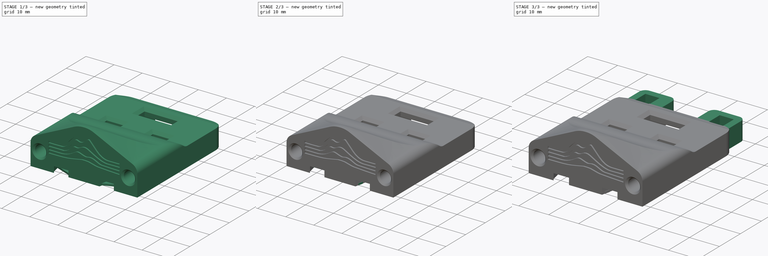
[diagram: build sequence overview — one tinted view per stage of 3, left to right]
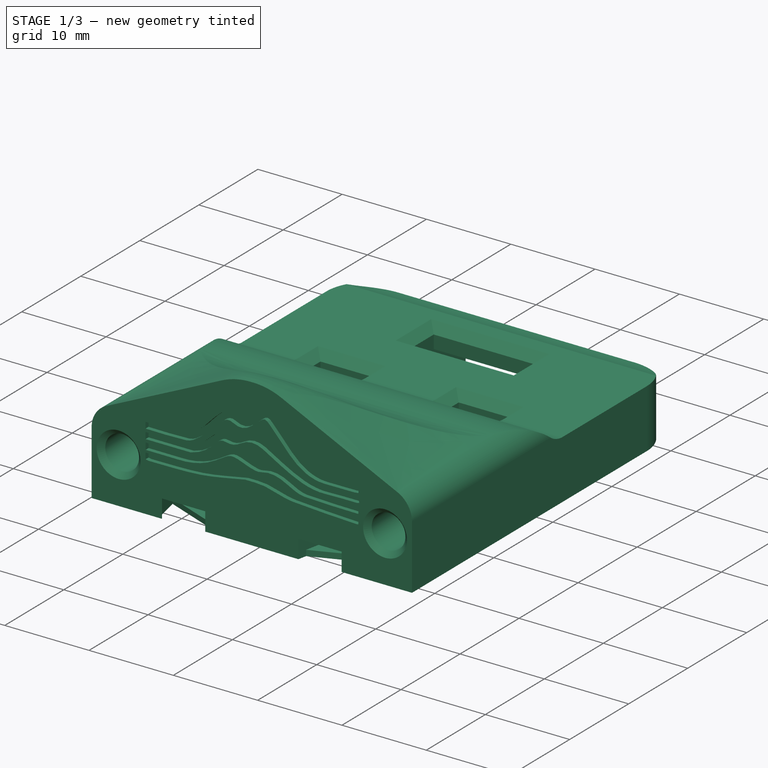
[diagram: stage 1 of 3 — iso view after this stage's code; geometry added in this stage tinted green]
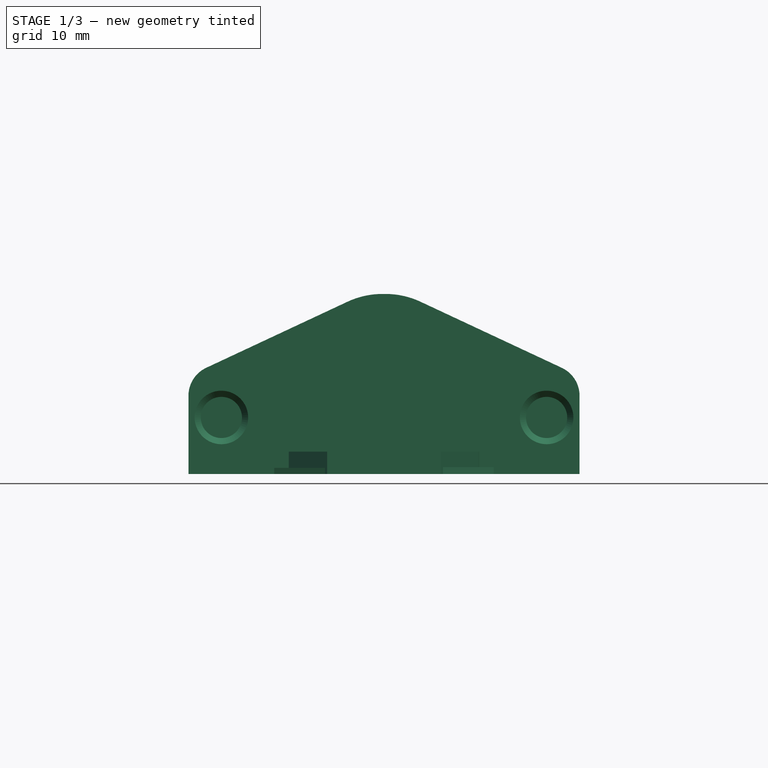
[diagram: stage 1 of 3 — front view after this stage's code; geometry added in this stage tinted green]
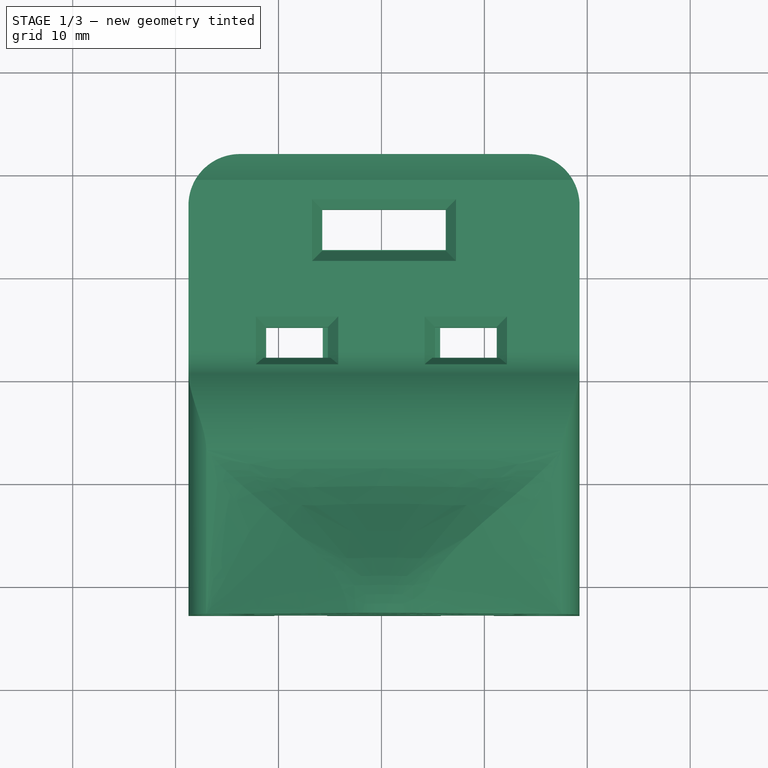
[diagram: stage 1 of 3 — top view after this stage's code; geometry added in this stage tinted green]
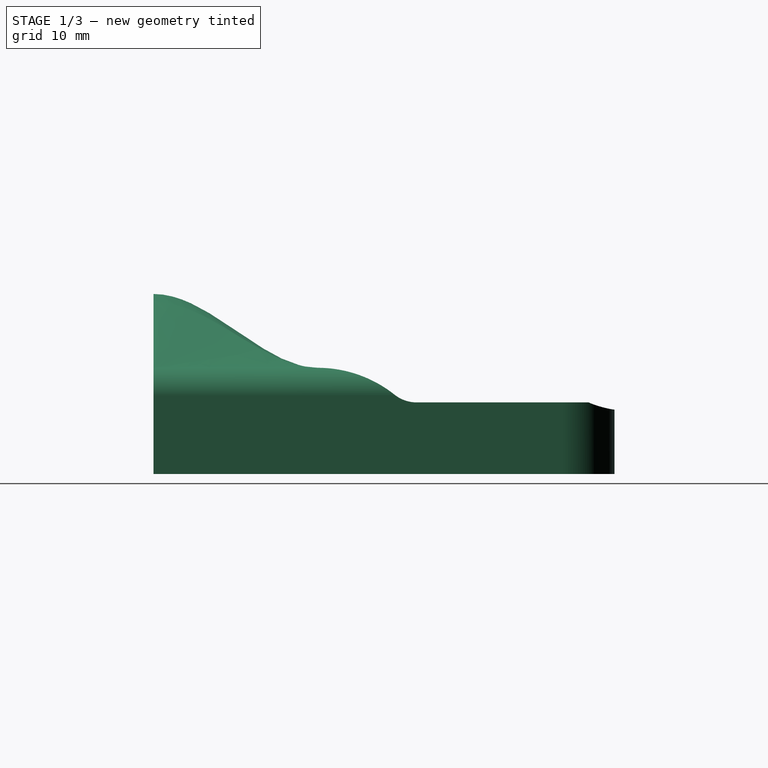
[diagram: stage 1 of 3 — right view after this stage's code; geometry added in this stage tinted green]
FCSTD DOCUMENT  (FreeCAD 0.22R36807 (Git))
Label: K1 Bltouch Carto Stein
License: All rights reserved
LicenseURL: https://en.wikipedia.org/wiki/All_rights_reserved
objects: Sketcher::SketchObject×5, Part::Feature×3, PartDesign::Pocket×3, PartDesign::FeatureBase×2, PartDesign::Pad×2, PartDesign::Body×2, PartDesign::Fillet×1
note: 24 computed .brp shape members not serialized (recipe doc carries the construction recipe); baked Part::Feature solids carry a one-line shape summary decoded from their .brp

FEATURE [Part::Feature] K1_BLTouch_Adapter
  Placement = pos=(-42,-11,2e-15) rot=(0.57735,0.57735,0.57735;4.18879rad)
  shape: bbox 32.7 x 12 x 11.53 mm, 93 faces (baked)
FEATURE [Part::Feature] Carto_Cover_for_Pel
  shape: bbox 34.6 x 20.6 x 1.279 mm, 56 faces (baked)
FEATURE [Part::Feature] Carto_Mount_for_Pel
  shape: bbox 38 x 44.78 x 17.5 mm, 366 faces (baked)
FEATURE [PartDesign::FeatureBase] BaseFeature
  BaseFeature = -> Carto_Mount_for_Pel
  Suppressed = false
FEATURE [PartDesign::Body] Body
  BaseFeature = -> Carto_Mount_for_Pel
  Group = -> [BaseFeature,Sketch,Pad,Sketch001,Pocket,Sketch002,Pad001,Sketch003,Pocket001,Fillet]
  Origin = -> Origin
  Tip = -> Fillet
FEATURE [PartDesign::FeatureBase] BaseFeature001
  BaseFeature = -> Carto_Cover_for_Pel
  Suppressed = false
FEATURE [Sketcher::SketchObject] Sketch004
  AttachmentSupport = -> [BaseFeature001]
  ExternalGeometry = -> [BaseFeature001]
  FullyConstrained = false
  MapMode = 5
  Placement = pos=(0,2e-14,-3.45966) rot=(0,0,1;0rad)
  sketch-geometry (8):
    g0: LineSegment StartX=-12.8046 StartY=-19.7847 StartZ=0 EndX=-8.38103 EndY=-21.5455 EndZ=0
    g1: LineSegment StartX=-8.38103 StartY=-21.5455 StartZ=0 EndX=-7.64018 EndY=-20.2259 EndZ=0
    g2: LineSegment StartX=-7.64018 StartY=-20.2259 StartZ=0 EndX=-11.8203 EndY=-18.562 EndZ=0
    g3: LineSegment StartX=-11.8203 StartY=-18.562 StartZ=0 EndX=-12.8046 EndY=-19.7847 EndZ=0
    g4: LineSegment StartX=8.07484 StartY=-20.2485 StartZ=0 EndX=8.87293 EndY=-21.5453 EndZ=0
    g5: LineSegment StartX=8.87293 StartY=-21.5453 StartZ=0 EndX=13.3239 EndY=-19.8206 EndZ=0
    g6: LineSegment StartX=13.3239 StartY=-19.8206 StartZ=0 EndX=12.061 EndY=-18.6618 EndZ=0
    g7: LineSegment StartX=12.061 StartY=-18.6618 StartZ=0 EndX=8.07484 EndY=-20.2485 EndZ=0
  constraints (15):
    c: Coincident(g-4,g0)
    c: Coincident(g0,g-4)
    c: Coincident(g0,g1)
    c: Coincident(g1,g-3)
    c: Coincident(g1,g2)
    c: Coincident(g2,g-3)
    c: Coincident(g2,g3)
    c: Coincident(g3,g0)
    c: Coincident(g-6,g4)
    c: Coincident(g4,g-5)
    c: Coincident(g4,g5)
    c: Coincident(g5,g6)
    c: Coincident(g6,g-6)
    c: Coincident(g6,g7)
    c: Coincident(g7,g4)
FEATURE [PartDesign::Pocket] Pocket002
  BaseFeature = -> BaseFeature001
  Direction = (0,5.8e-15,-1)
  Length = 5
  Length2 = 5
  Profile = -> Sketch004
  ReferenceAxis = -> Sketch004 [N_Axis]
  Suppressed = false
  Type = 0
FEATURE [PartDesign::Body] Body001  label="Carto Cover"
  BaseFeature = -> Carto_Cover_for_Pel
  Group = -> [BaseFeature001,Sketch004,Pocket002]
  Origin = -> Origin001
  Tip = -> Pocket002
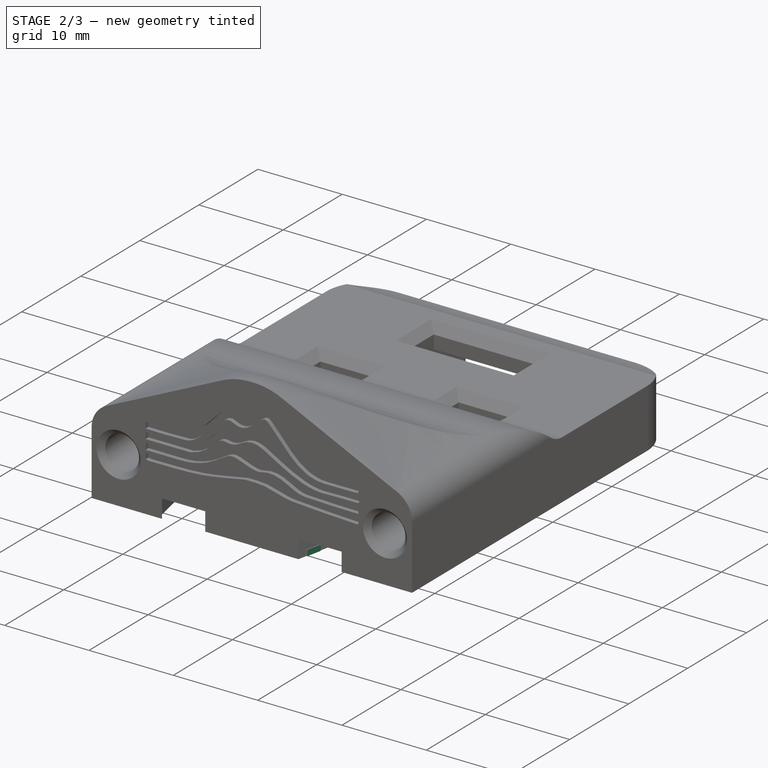
[diagram: stage 2 of 3 — iso view after this stage's code; geometry added in this stage tinted green]
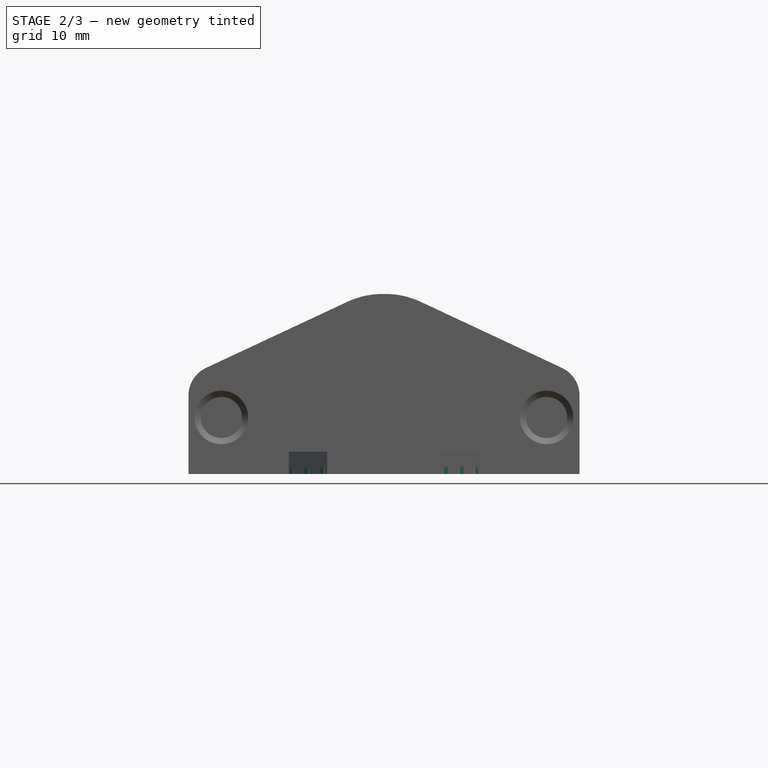
[diagram: stage 2 of 3 — front view after this stage's code; geometry added in this stage tinted green]
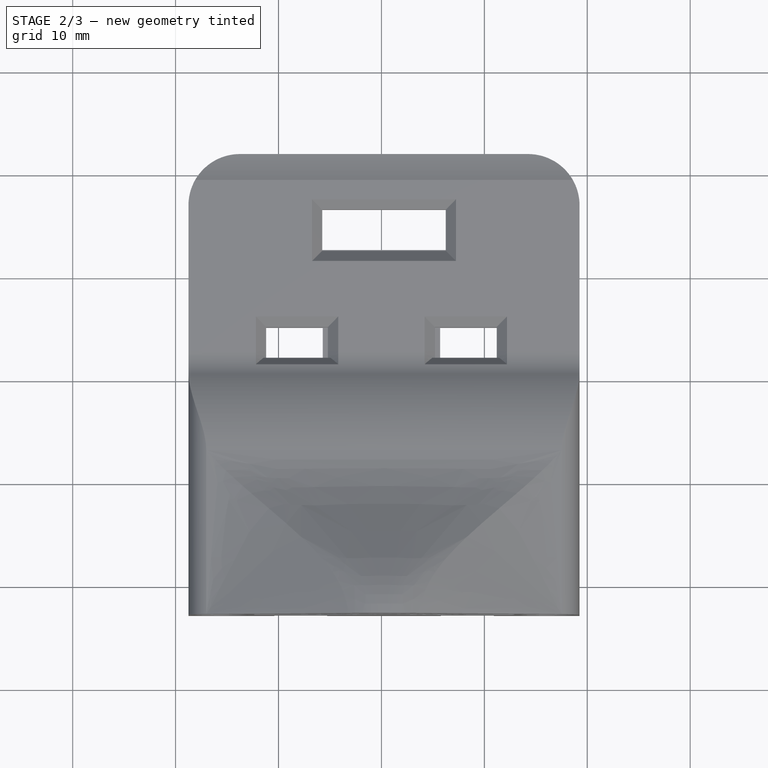
[diagram: stage 2 of 3 — top view after this stage's code; geometry added in this stage tinted green]
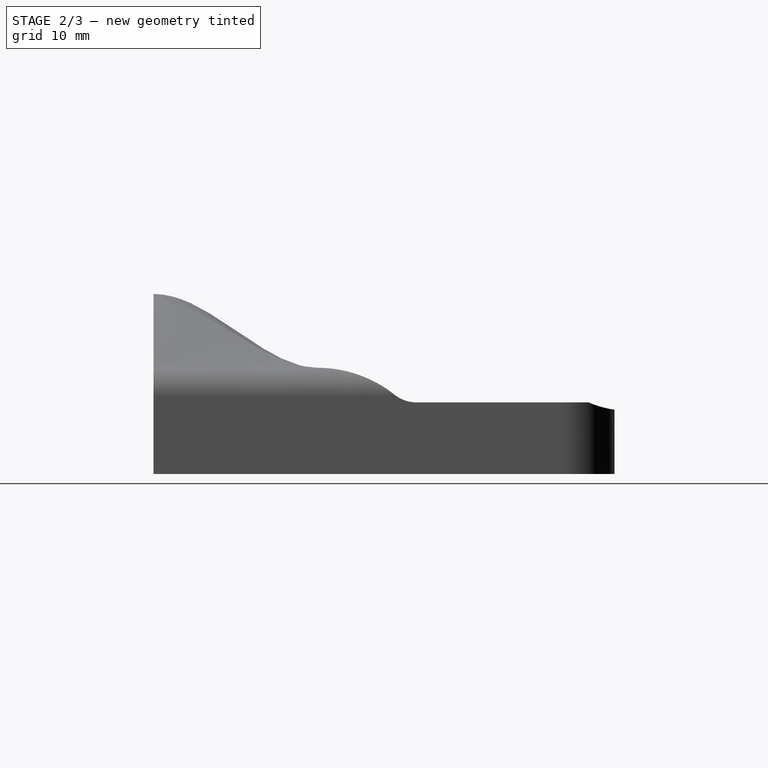
[diagram: stage 2 of 3 — right view after this stage's code; geometry added in this stage tinted green]
FEATURE [Sketcher::SketchObject] Sketch
  AttachmentSupport = -> [BaseFeature]
  ExternalGeometry = -> [BaseFeature]
  FullyConstrained = false
  MapMode = 5
  Placement = pos=(0,-4,0) rot=(0,0.707107,0.707107;3.14159rad)
  sketch-geometry (2):
    g0: Circle CenterX=-12.05 CenterY=-1.1 CenterZ=0 NormalX=0 NormalY=0 NormalZ=1 AngleXU=0 Radius=2.20051
    g1: Circle CenterX=12.05 CenterY=-1.1 CenterZ=0 NormalX=0 NormalY=0 NormalZ=1 AngleXU=0 Radius=2.18704
  constraints (2):
    c: Coincident(g0,g-4)
    c: Coincident(g1,g-3)
FEATURE [PartDesign::Pad] Pad
  BaseFeature = -> BaseFeature
  Direction = (0,1,-2e-16)
  Length = 6
  Length2 = 10
  Profile = -> Sketch
  ReferenceAxis = -> Sketch [N_Axis]
  Refine = true
  Suppressed = false
  Type = 0
FEATURE [Sketcher::SketchObject] Sketch001
  AttachmentSupport = -> [Pad]
  FullyConstrained = false
  MapMode = 5
  Placement = pos=(0,2.35e-14,-4.05966) rot=(1,0,0;3.14159rad)
  sketch-geometry (12):
    g0: LineSegment StartX=-11.5178 StartY=39.4639 StartZ=0 EndX=-14.4709 EndY=25.2538 EndZ=0
    g1: LineSegment StartX=-14.4709 StartY=25.2538 StartZ=0 EndX=-14.3236 EndY=23.3688 EndZ=0
    g2: LineSegment StartX=-14.3236 StartY=23.3688 StartZ=0 EndX=-8.91739 EndY=25.5746 EndZ=0
    g3: LineSegment StartX=-8.91739 StartY=25.5746 StartZ=0 EndX=-8.62105 EndY=27.523 EndZ=0
    g4: LineSegment StartX=-8.62105 StartY=27.523 StartZ=0 EndX=-5.61458 EndY=41.8451 EndZ=0
    g5: LineSegment StartX=-5.61458 StartY=41.8451 StartZ=0 EndX=-11.5178 EndY=39.4639 EndZ=0
    g6: LineSegment StartX=6.06085 StartY=41.8304 StartZ=0 EndX=9.11334 EndY=27.5604 EndZ=0
    g7: LineSegment StartX=9.11334 StartY=27.5604 StartZ=0 EndX=9.37171 EndY=25.6773 EndZ=0
    g8: LineSegment StartX=9.37171 StartY=25.6773 StartZ=0 EndX=14.8607 EndY=23.554 EndZ=0
    g9: LineSegment StartX=14.8607 StartY=23.554 StartZ=0 EndX=14.8607 EndY=25.0525 EndZ=0
    g10: LineSegment StartX=14.8607 StartY=25.0525 StartZ=0 EndX=11.9431 EndY=39.492 EndZ=0
    g11: LineSegment StartX=11.9431 StartY=39.492 StartZ=0 EndX=6.06085 EndY=41.8304 EndZ=0
  constraints (13):
    c: Coincident(g0,g1)
    c: Coincident(g1,g2)
    c: Coincident(g2,g3)
    c: Coincident(g3,g4)
    c: Coincident(g4,g5)
    c: Coincident(g5,g0)
    c: Coincident(g6,g7)
    c: Coincident(g7,g8)
    c: Coincident(g8,g9)
    c: Vertical(g9)
    c: Coincident(g9,g10)
    c: Coincident(g10,g11)
    c: Coincident(g11,g6)
FEATURE [PartDesign::Pocket] Pocket
  BaseFeature = -> Pad
  Direction = (0,-5.8e-15,1)
  Length = 1
  Length2 = 5
  Profile = -> Sketch001
  ReferenceAxis = -> Sketch001 [N_Axis]
  Refine = true
  Suppressed = false
  Type = 0
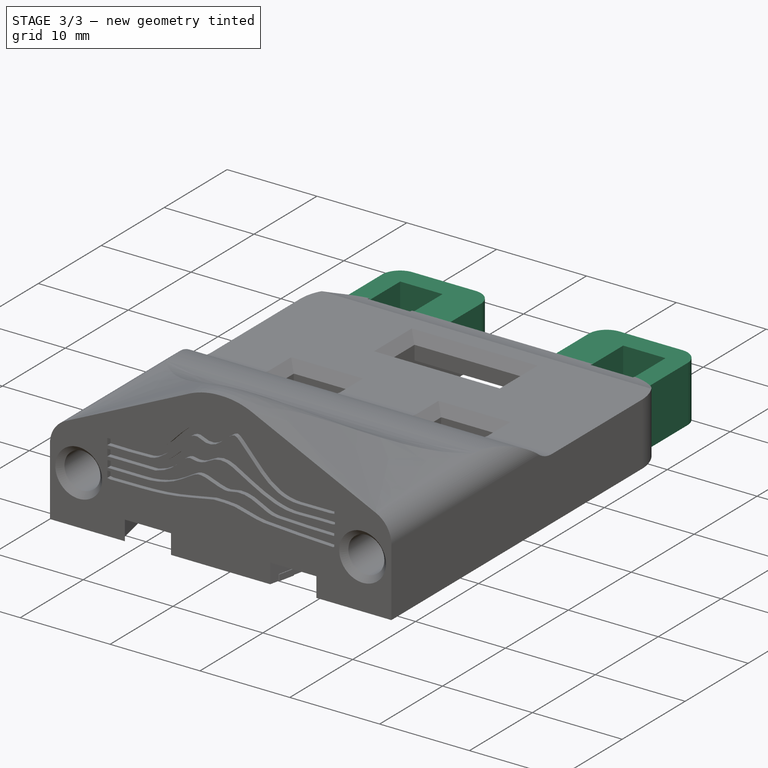
[diagram: stage 3 of 3 — iso view after this stage's code; geometry added in this stage tinted green]
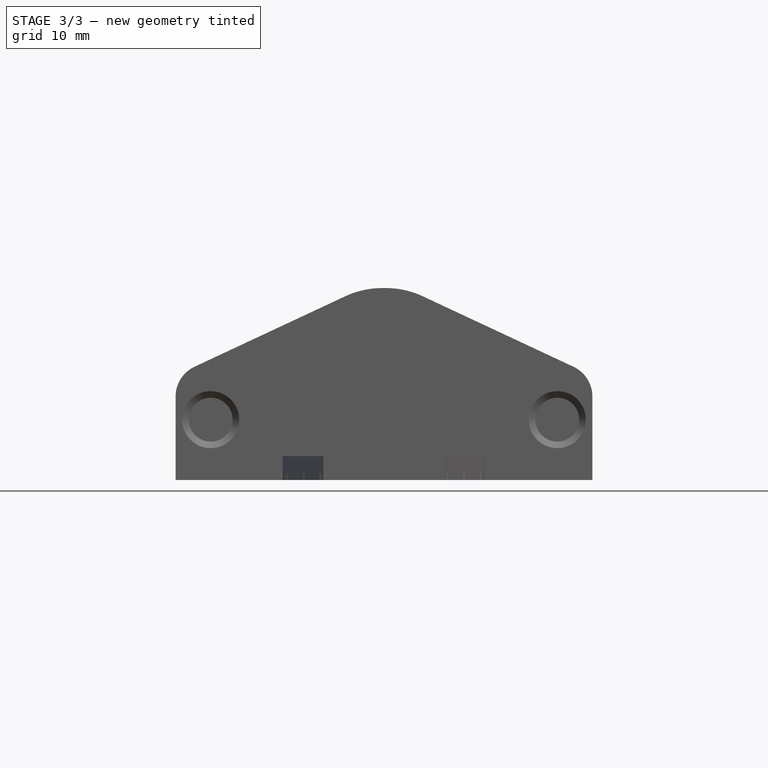
[diagram: stage 3 of 3 — front view after this stage's code; geometry added in this stage tinted green]
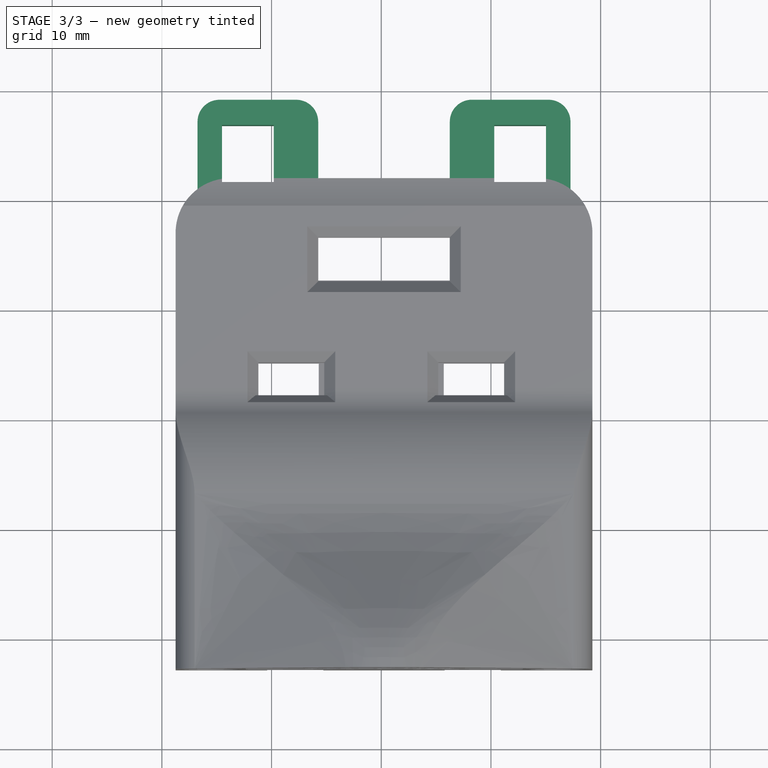
[diagram: stage 3 of 3 — top view after this stage's code; geometry added in this stage tinted green]
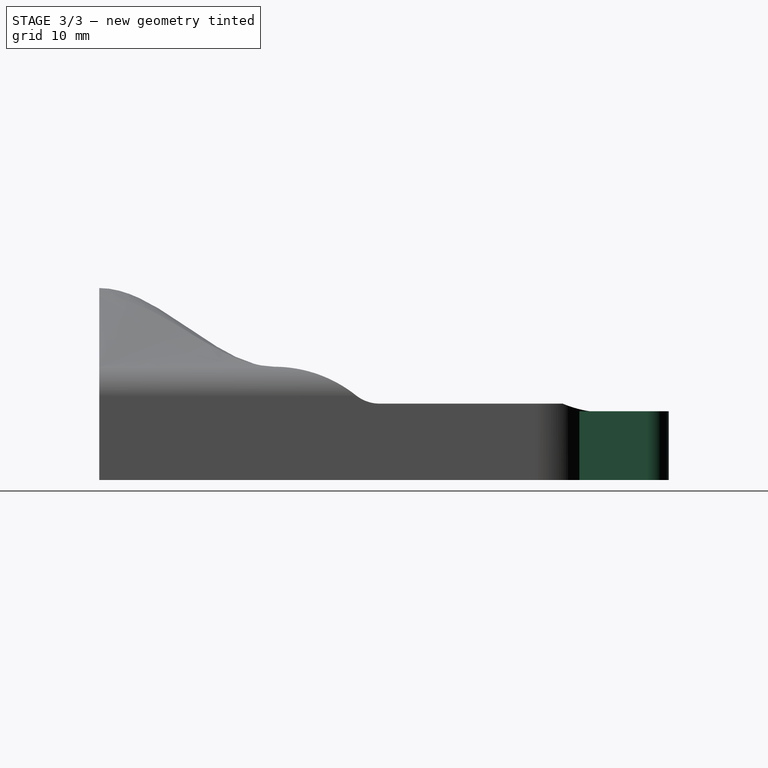
[diagram: stage 3 of 3 — right view after this stage's code; geometry added in this stage tinted green]
FEATURE [Sketcher::SketchObject] Sketch002
  AttachmentOffset = pos=(0,0,-3) rot=(0,0,1;0rad)
  AttachmentSupport = -> [Pocket]
  ExternalGeometry = -> [Pocket]
  FullyConstrained = false
  MapMode = 5
  Placement = pos=(0,-1,7e-16) rot=(0,0.707107,0.707107;3.14159rad)
  sketch-geometry (8):
    g0: LineSegment StartX=-6.25 StartY=-4.05966 StartZ=0 EndX=-6.25 EndY=2.20034 EndZ=0
    g1: LineSegment StartX=-6.25 StartY=2.20034 StartZ=0 EndX=-17.25 EndY=2.20034 EndZ=0
    g2: LineSegment StartX=-17.25 StartY=2.20034 StartZ=0 EndX=-17.25 EndY=-4.05966 EndZ=0
    g3: LineSegment StartX=-17.25 StartY=-4.05966 StartZ=0 EndX=-6.25 EndY=-4.05966 EndZ=0
    g4: LineSegment StartX=5.75 StartY=-4.05966 StartZ=0 EndX=16.75 EndY=-4.05966 EndZ=0
    g5: LineSegment StartX=16.75 StartY=-4.05966 StartZ=0 EndX=16.75 EndY=2.00718 EndZ=0
    g6: LineSegment StartX=16.75 StartY=2.00718 StartZ=0 EndX=5.75 EndY=2.00718 EndZ=0
    g7: LineSegment StartX=5.75 StartY=2.00718 StartZ=0 EndX=5.75 EndY=-4.05966 EndZ=0
  constraints (21):
    c: Coincident(g0,g1)
    c: Coincident(g1,g2)
    c: Coincident(g2,g3)
    c: Coincident(g3,g0)
    c: Vertical(g0)
    c: Vertical(g2)
    c: Horizontal(g1)
    c: Horizontal(g3)
    c: Coincident(g0,g-4)
    c: Coincident(g4,g5)
    c: Coincident(g5,g6)
    c: Coincident(g6,g7)
    c: Coincident(g7,g4)
    c: Horizontal(g4)
    c: Horizontal(g6)
    c: Vertical(g5)
    c: Vertical(g7)
    c: Coincident(g4,g-3)
    c: Equal(g4,g3)
    c: Distance(g4,g4) = 11
    c: DistanceY(g2,g2) = 6.26
FEATURE [PartDesign::Pad] Pad001
  BaseFeature = -> Pocket
  Direction = (0,1,-2e-16)
  Length = 10.15
  Length2 = 10
  Profile = -> Sketch002
  ReferenceAxis = -> Sketch002 [N_Axis]
  Refine = true
  Suppressed = false
  Type = 0
FEATURE [Sketcher::SketchObject] Sketch003
  AttachmentSupport = -> [Pad001]
  ExternalGeometry = -> [Pad001]
  FullyConstrained = true
  MapMode = 5
  Placement = pos=(0,2.23e-14,-4.05966) rot=(1,0,0;3.14159rad)
  sketch-geometry (8):
    g0: LineSegment StartX=15.02 StartY=-6.85 StartZ=0 EndX=15.02 EndY=-1.65 EndZ=0
    g1: LineSegment StartX=15.02 StartY=-1.65 StartZ=0 EndX=10.3 EndY=-1.65 EndZ=0
    g2: LineSegment StartX=10.3 StartY=-1.65 StartZ=0 EndX=10.3 EndY=-6.85 EndZ=0
    g3: LineSegment StartX=10.3 StartY=-6.85 StartZ=0 EndX=15.02 EndY=-6.85 EndZ=0
    g4: LineSegment StartX=-9.8 StartY=-6.85 StartZ=0 EndX=-9.8 EndY=-1.65 EndZ=0
    g5: LineSegment StartX=-9.8 StartY=-1.65 StartZ=0 EndX=-14.52 EndY=-1.65 EndZ=0
    g6: LineSegment StartX=-14.52 StartY=-1.65 StartZ=0 EndX=-14.52 EndY=-6.85 EndZ=0
    g7: LineSegment StartX=-14.52 StartY=-6.85 StartZ=0 EndX=-9.8 EndY=-6.85 EndZ=0
  constraints (24):
    c: Coincident(g0,g1)
    c: Coincident(g1,g2)
    c: Coincident(g2,g3)
    c: Coincident(g3,g0)
    c: Vertical(g0)
    c: Vertical(g2)
    c: Horizontal(g1)
    c: Horizontal(g3)
    c: Coincident(g4,g5)
    c: Coincident(g5,g6)
    c: Coincident(g6,g7)
    c: Coincident(g7,g4)
    c: Vertical(g4)
    c: Vertical(g6)
    c: Horizontal(g5)
    c: Horizontal(g7)
    c: DistanceY(g4,g-3) = -0.35
    c: DistanceY(g1,g-3) = -0.35
    c: DistanceX(g4,g2) = 20.1
    c: Equal(g7,g3)
    c: Distance(g7,g7) = 4.72
    c: DistanceY(g0,g0) = 5.2
    c: DistanceX(g0,g-4) = 2.23
    c: Equal(g4,g2)
FEATURE [PartDesign::Pocket] Pocket001
  BaseFeature = -> Pad001
  Direction = (0,-5.5e-15,1)
  Length = 5
  Length2 = 5
  Profile = -> Sketch003
  ReferenceAxis = -> Sketch003 [N_Axis]
  Refine = true
  Suppressed = false
  Type = 1
FEATURE [PartDesign::Fillet] Fillet
  Base = -> Pocket001 [Edge108,Edge30,Edge159,Edge203]
  BaseFeature = -> Pocket001
  Radius = 2
  SupportTransform = false
  Suppressed = false
  UseAllEdges = false
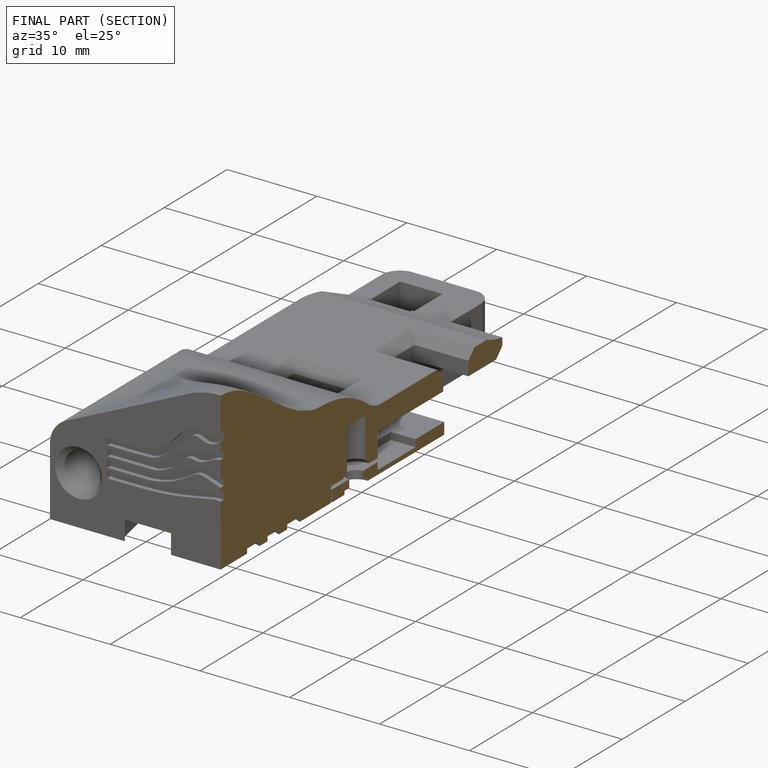
[diagram: finished part — half-section view (interior)]
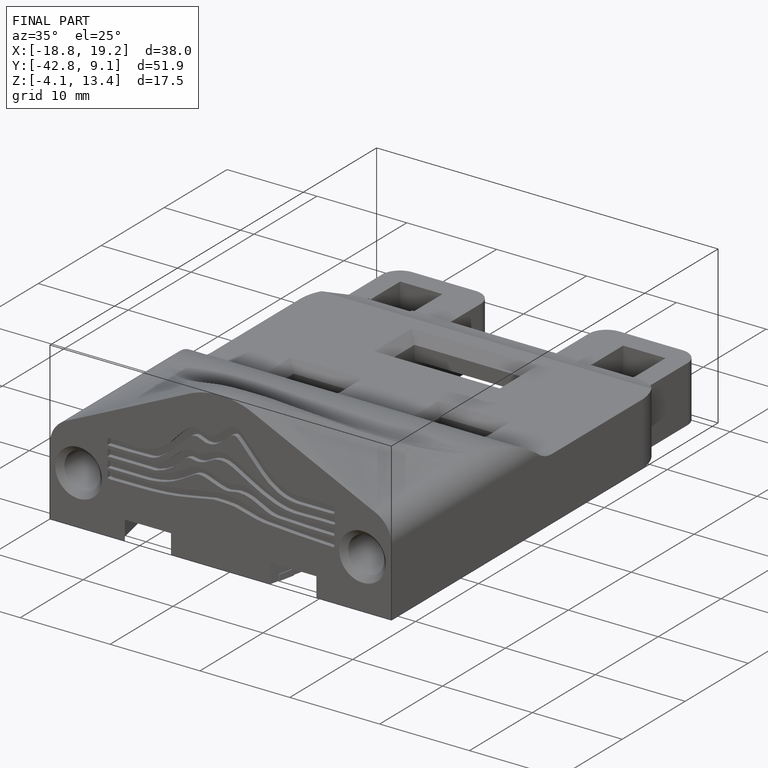
[diagram: finished part — iso view with bounding-box wireframe]
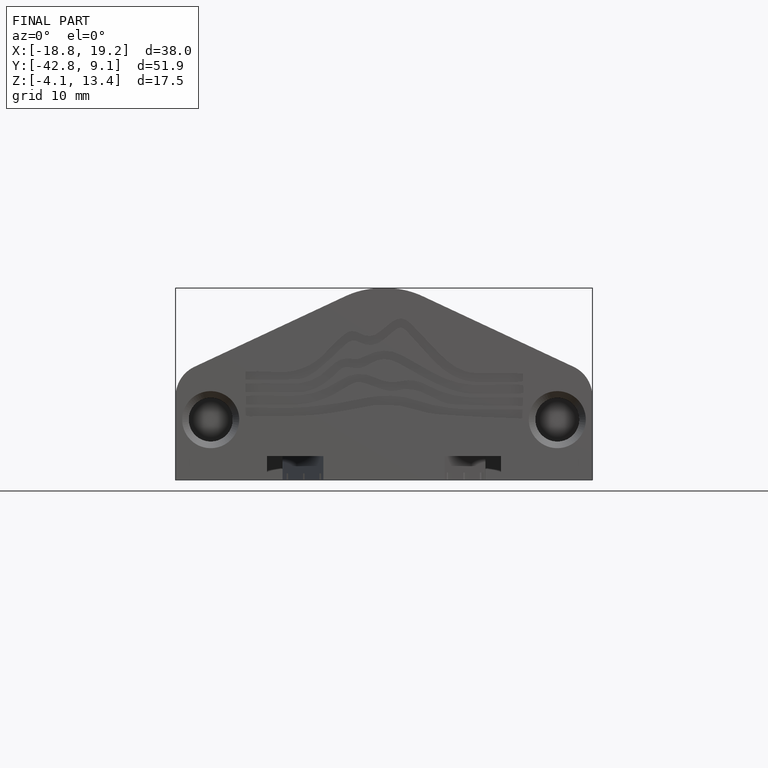
[diagram: finished part — front view with bounding-box wireframe]
